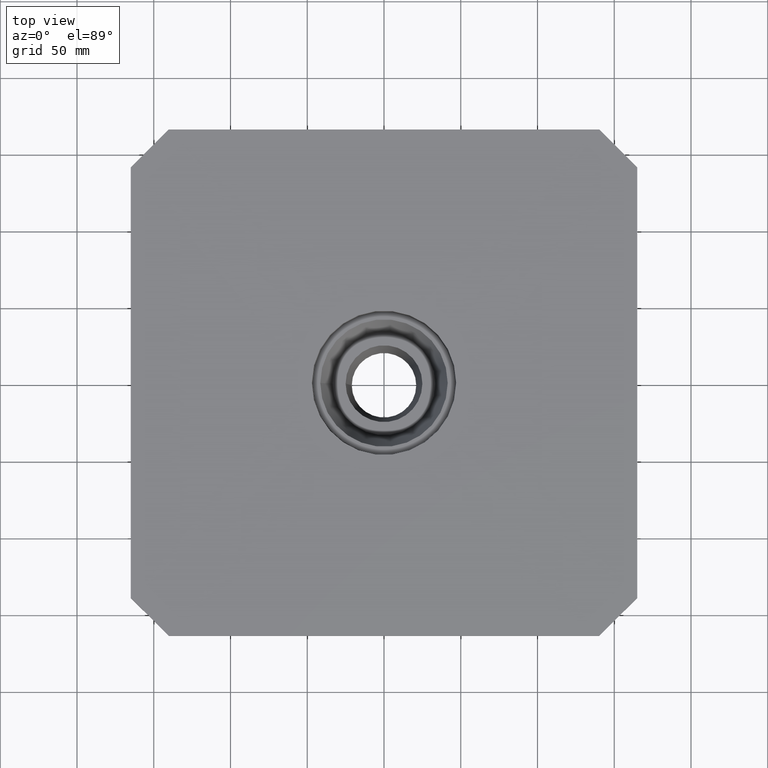
[diagram: clean part render]
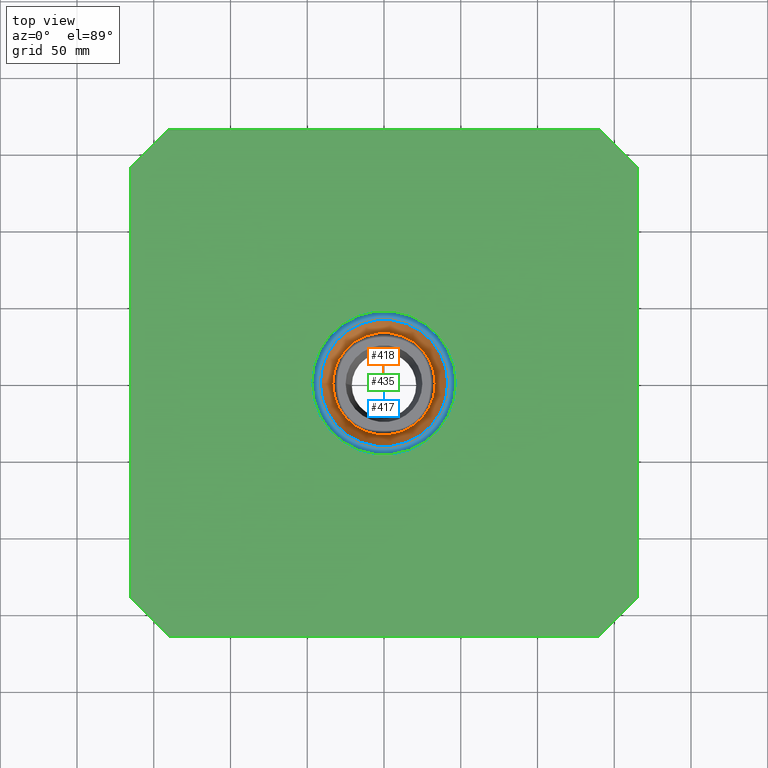
[diagram: same view with three faces highlighted in distinct colors, each labeled with its STEP entity id]
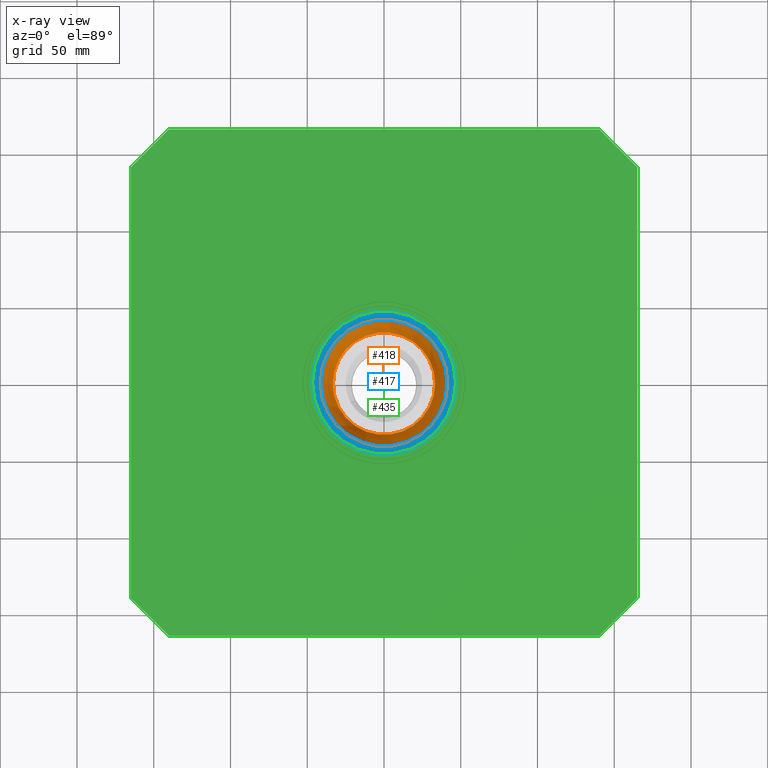
[diagram: x-ray of the same camera — body ghosted, the three highlighted faces saturated]
A machine part, top view with three faces highlighted in distinct colors.
The next image is the same camera in x-ray (body ghosted, the three faces saturated) — at least one of them is partly hidden behind the body in this view.
Their STEP definitions:

[orange] entity #418 — the highlighted conical surface has half-angle 18.435 deg.
#21=CONICAL_SURFACE('',#469,41.5,0.321750554396642);
#36=CIRCLE('',#468,41.5);
#37=CIRCLE('',#470,33.35);
#99=ORIENTED_EDGE('',*,*,#180,.T.);
#100=ORIENTED_EDGE('',*,*,#179,.F.);
#179=EDGE_CURVE('',#217,#217,#36,.T.);
#180=EDGE_CURVE('',#218,#218,#37,.T.);
#217=VERTEX_POINT('',#701);
#218=VERTEX_POINT('',#704);
#299=EDGE_LOOP('',(#99));
#300=EDGE_LOOP('',(#100));
#353=FACE_BOUND('',#299,.T.);
#354=FACE_BOUND('',#300,.T.);
#418=ADVANCED_FACE('',(#353,#354),#21,.F.);
#468=AXIS2_PLACEMENT_3D('',#700,#566,#567);
#469=AXIS2_PLACEMENT_3D('',#702,#568,#569);
#470=AXIS2_PLACEMENT_3D('',#703,#570,#571);
#566=DIRECTION('',(0.,0.,-1.));
#567=DIRECTION('',(-1.,0.,0.));
#568=DIRECTION('',(0.,0.,1.));
#569=DIRECTION('',(1.,0.,0.));
#570=DIRECTION('',(0.,0.,-1.));
#571=DIRECTION('',(-1.,0.,0.));
#700=CARTESIAN_POINT('',(0.,0.,-10.));
#701=CARTESIAN_POINT('',(-41.5,0.,-10.));
#702=CARTESIAN_POINT('',(0.,0.,-10.));
#703=CARTESIAN_POINT('',(0.,0.,-34.45));
#704=CARTESIAN_POINT('',(-33.35,0.,-34.45));

[blue] entity #417 — the highlighted planar face has unit normal (0, 0, 1).
#35=CIRCLE('',#466,46.5);
#36=CIRCLE('',#468,41.5);
#97=ORIENTED_EDGE('',*,*,#179,.T.);
#98=ORIENTED_EDGE('',*,*,#178,.F.);
#178=EDGE_CURVE('',#216,#216,#35,.T.);
#179=EDGE_CURVE('',#217,#217,#36,.T.);
#216=VERTEX_POINT('',#698);
#217=VERTEX_POINT('',#701);
#297=EDGE_LOOP('',(#97));
#298=EDGE_LOOP('',(#98));
#351=FACE_BOUND('',#297,.T.);
#352=FACE_BOUND('',#298,.T.);
#398=PLANE('',#467);
#417=ADVANCED_FACE('',(#351,#352),#398,.T.);
#466=AXIS2_PLACEMENT_3D('',#697,#562,#563);
#467=AXIS2_PLACEMENT_3D('',#699,#564,#565);
#468=AXIS2_PLACEMENT_3D('',#700,#566,#567);
#562=DIRECTION('',(0.,0.,-1.));
#563=DIRECTION('',(-1.,0.,0.));
#564=DIRECTION('',(0.,0.,1.));
#565=DIRECTION('',(1.,0.,0.));
#566=DIRECTION('',(0.,0.,-1.));
#567=DIRECTION('',(-1.,0.,0.));
#697=CARTESIAN_POINT('',(0.,0.,-10.));
#698=CARTESIAN_POINT('',(-46.5,0.,-10.));
#699=CARTESIAN_POINT('',(-46.5,0.,-10.));
#700=CARTESIAN_POINT('',(0.,0.,-10.));
#701=CARTESIAN_POINT('',(-41.5,0.,-10.));

[green] entity #435 — the highlighted planar face has unit normal (-0, 0, 1).
#31=CIRCLE('',#458,47.);
#140=ORIENTED_EDGE('',*,*,#172,.F.);
#141=ORIENTED_EDGE('',*,*,#149,.T.);
#142=ORIENTED_EDGE('',*,*,#153,.T.);
#143=ORIENTED_EDGE('',*,*,#156,.T.);
#144=ORIENTED_EDGE('',*,*,#159,.T.);
#145=ORIENTED_EDGE('',*,*,#162,.T.);
#146=ORIENTED_EDGE('',*,*,#165,.T.);
#147=ORIENTED_EDGE('',*,*,#168,.T.);
#148=ORIENTED_EDGE('',*,*,#173,.T.);
#149=EDGE_CURVE('',#195,#196,#233,.T.);
#153=EDGE_CURVE('',#196,#199,#237,.T.);
#156=EDGE_CURVE('',#199,#201,#240,.T.);
#159=EDGE_CURVE('',#201,#203,#243,.T.);
#162=EDGE_CURVE('',#203,#205,#246,.T.);
#165=EDGE_CURVE('',#205,#207,#249,.T.);
#168=EDGE_CURVE('',#207,#209,#252,.T.);
#172=EDGE_CURVE('',#212,#212,#31,.T.);
#173=EDGE_CURVE('',#209,#195,#255,.T.);
#195=VERTEX_POINT('',#637);
#196=VERTEX_POINT('',#638);
#199=VERTEX_POINT('',#646);
#201=VERTEX_POINT('',#652);
#203=VERTEX_POINT('',#658);
#205=VERTEX_POINT('',#664);
#207=VERTEX_POINT('',#670);
#209=VERTEX_POINT('',#676);
#212=VERTEX_POINT('',#684);
#233=LINE('',#636,#257);
#237=LINE('',#645,#261);
#240=LINE('',#651,#264);
#243=LINE('',#657,#267);
#246=LINE('',#663,#270);
#249=LINE('',#669,#273);
#252=LINE('',#675,#276);
#255=LINE('',#686,#279);
#257=VECTOR('',#506,1000.);
#261=VECTOR('',#512,1000.);
#264=VECTOR('',#517,1000.);
#267=VECTOR('',#522,1000.);
#270=VECTOR('',#527,1000.);
#273=VECTOR('',#532,1000.);
#276=VECTOR('',#537,1000.);
#279=VECTOR('',#548,1000.);
#333=EDGE_LOOP('',(#140));
#334=EDGE_LOOP('',(#141,#142,#143,#144,#145,#146,#147,#148));
#387=FACE_BOUND('',#333,.T.);
#388=FACE_BOUND('',#334,.T.);
#404=PLANE('',#501);
#435=ADVANCED_FACE('',(#387,#388),#404,.T.);
#458=AXIS2_PLACEMENT_3D('',#683,#544,#545);
#501=AXIS2_PLACEMENT_3D('',#749,#632,#633);
#506=DIRECTION('',(0.,-1.,0.));
#512=DIRECTION('',(0.707106781186548,-0.707106781186548,1.35290595589709E-18));
#517=DIRECTION('',(1.,0.,1.91329795144501E-18));
#522=DIRECTION('',(0.707106781186548,0.707106781186548,1.35290595589709E-18));
#527=DIRECTION('',(0.,1.,0.));
#532=DIRECTION('',(-0.707106781186548,0.707106781186548,-1.35290595589709E-18));
#537=DIRECTION('',(-1.,0.,-1.91329795144501E-18));
#544=DIRECTION('',(-1.91329795144501E-18,0.,1.));
#545=DIRECTION('',(1.,0.,1.91329795144501E-18));
#548=DIRECTION('',(-0.707106781186548,-0.707106781186548,-1.35290595589709E-18));
#632=DIRECTION('',(-1.91329795144501E-18,0.,1.));
#633=DIRECTION('',(1.,0.,1.91329795144501E-18));
#636=CARTESIAN_POINT('',(-165.,140.251262658471,1.3));
#637=CARTESIAN_POINT('',(-165.,140.251262658471,1.3));
#638=CARTESIAN_POINT('',(-165.,-140.251262658471,1.3));
#645=CARTESIAN_POINT('',(-165.,-140.251262658471,1.3));
#646=CARTESIAN_POINT('',(-140.251262658471,-165.,1.3));
#651=CARTESIAN_POINT('',(-140.251262658471,-165.,1.3));
#652=CARTESIAN_POINT('',(140.251262658471,-165.,1.3));
#657=CARTESIAN_POINT('',(140.251262658471,-165.,1.3));
#658=CARTESIAN_POINT('',(165.,-140.251262658471,1.3));
#663=CARTESIAN_POINT('',(165.,-140.251262658471,1.3));
#664=CARTESIAN_POINT('',(165.,140.251262658471,1.3));
#669=CARTESIAN_POINT('',(165.,140.251262658471,1.3));
#670=CARTESIAN_POINT('',(140.251262658471,165.,1.3));
#675=CARTESIAN_POINT('',(140.251262658471,165.,1.3));
#676=CARTESIAN_POINT('',(-140.251262658471,165.,1.3));
#683=CARTESIAN_POINT('',(0.,0.,1.3));
#684=CARTESIAN_POINT('',(47.,0.,1.3));
#686=CARTESIAN_POINT('',(-140.251262658471,165.,1.3));
#749=CARTESIAN_POINT('',(170.,170.,1.3));